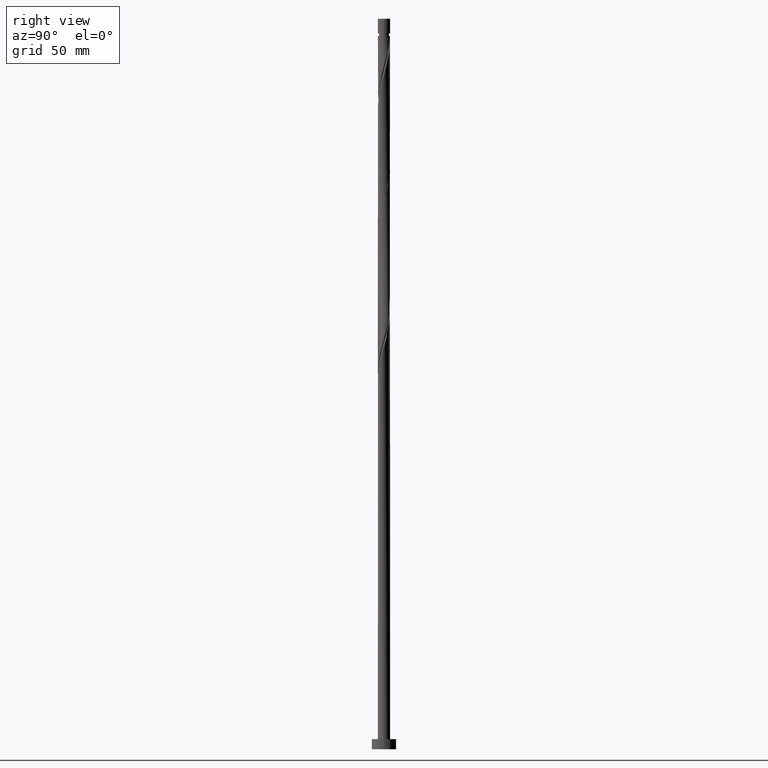
[diagram: clean part render]
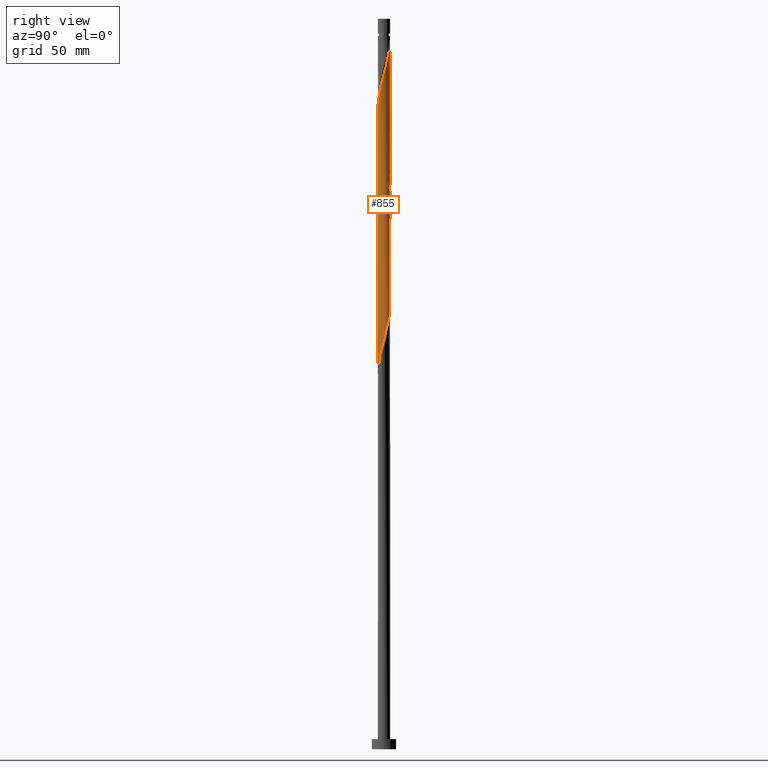
[diagram: same view with one face highlighted and labeled with its STEP entity id]
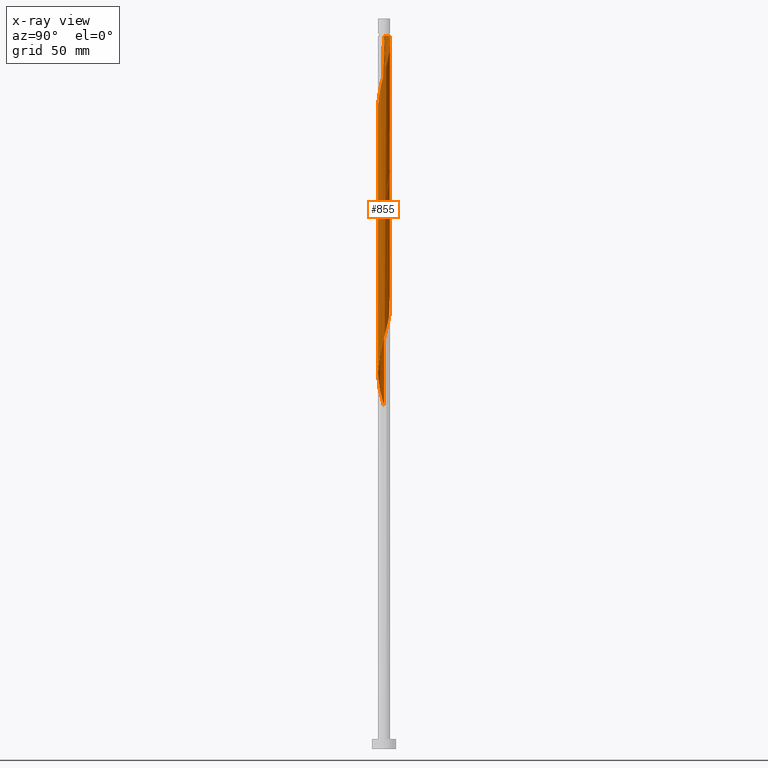
[diagram: x-ray of the same camera — body ghosted, the highlighted face saturated]
A machine part, right view. The second image highlights one B-rep face of the part: STEP entity #855.
The next image is the same camera in x-ray: the body ghosted, the highlighted face saturated — about 0% of this face is hidden behind the body in this view.
In plain terms, the highlighted cylindrical surface (bore or boss wall) has radius 3 mm, axis along (-0, -0, -1).
Its self-contained STEP definition (entity closure, byte-faithful):
#6 = CARTESIAN_POINT ( 'NONE',  ( -0.9059989139450633777, -2.877253563794372582, 181.4603085760876695 ) ) ;
#7 = CARTESIAN_POINT ( 'NONE',  ( 1.997955648279248431, 2.259998966801997522, 210.3491974649765268 ) ) ;
#10 = CARTESIAN_POINT ( 'NONE',  ( -0.3426132633519656800, -2.997004880578673980, 312.5714196871987269 ) ) ;
#15 = CARTESIAN_POINT ( 'NONE',  ( 2.980586974261063116, 0.3407363920471042640, 269.2380863538654125 ) ) ;
#19 = CARTESIAN_POINT ( 'NONE',  ( 3.000000000000000000, -0.1435319978602521140, 267.5216477384895484 ) ) ;
#20 = AXIS2_PLACEMENT_3D ( 'NONE', #726, #748, #566 ) ;
#26 = CARTESIAN_POINT ( 'NONE',  ( 2.944774136347767968, 0.6540087066196493826, 270.3491974649766121 ) ) ;
#27 = ORIENTED_EDGE ( 'NONE', *, *, #1527, .F. ) ;
#29 = CARTESIAN_POINT ( 'NONE',  ( -2.744447700168705762, -1.251970017003501523, 239.2380863538654694 ) ) ;
#30 = CARTESIAN_POINT ( 'NONE',  ( -0.3426132633519644033, 2.997004880578669095, 219.2380863538654694 ) ) ;
#37 = CARTESIAN_POINT ( 'NONE',  ( 2.986297077045554360, 0.2864083930844358306, 331.4603085760877548 ) ) ;
#50 = CIRCLE ( 'NONE', #1854, 2.999999999999970246 ) ;
#55 = CARTESIAN_POINT ( 'NONE',  ( 2.766788993523063400, 1.201790650553044681, 334.7936419094210123 ) ) ;
#64 = CARTESIAN_POINT ( 'NONE',  ( 2.038775222402709364, 2.223244857174723865, 339.2380863538654125 ) ) ;
#75 = CARTESIAN_POINT ( 'NONE',  ( -0.5969924622640607748, 2.940000000000876579, 349.2380863538654694 ) ) ;
#76 = CARTESIAN_POINT ( 'NONE',  ( 3.016399812174360928, 0.02746407747455687290, 201.4603085760876979 ) ) ;
#125 = CARTESIAN_POINT ( 'NONE',  ( -1.245111594254571630, 2.729413328510879921, 222.5714196871987269 ) ) ;
#137 = CARTESIAN_POINT ( 'NONE',  ( -2.456461689585820896, 1.750776419202127121, 228.1269752427542983 ) ) ;
#144 = CARTESIAN_POINT ( 'NONE',  ( -2.944774136347767080, -0.6540087066196500487, 237.0158641316432409 ) ) ;
#147 = VERTEX_POINT ( 'NONE', #389 ) ;
#155 = CARTESIAN_POINT ( 'NONE',  ( 3.000000000000000444, 3.673940397442060361E-16, 349.2380863538655262 ) ) ;
#164 = CARTESIAN_POINT ( 'NONE',  ( -3.000000000000000888, -0.1709212123392917781, 168.6357875734381082 ) ) ;
#174 = CARTESIAN_POINT ( 'NONE',  ( 0.2879860105828847550, 3.002746436205628200, 217.0158641316431840 ) ) ;
#176 = EDGE_CURVE ( 'NONE', #1225, #147, #1300, .T. ) ;
#190 = ORIENTED_EDGE ( 'NONE', *, *, #586, .F. ) ;
#194 = CARTESIAN_POINT ( 'NONE',  ( -0.9582386936374943653, -2.860279830445437987, 310.3491974649766121 ) ) ;
#197 = CARTESIAN_POINT ( 'NONE',  ( -0.02731362638454152419, -2.999875658392153532, 313.6825307983098696 ) ) ;
#202 = VERTEX_POINT ( 'NONE', #155 ) ;
#203 = CARTESIAN_POINT ( 'NONE',  ( 2.844610918258240417, -0.9529893618115796716, 327.0158641316432409 ) ) ;
#210 = CARTESIAN_POINT ( 'NONE',  ( 3.000000000000000888, 0.1709212123392948590, 268.6357875734382219 ) ) ;
#212 = CARTESIAN_POINT ( 'NONE',  ( -2.611625341554439483, 1.476283534877586678, 295.9047530205320982 ) ) ;
#214 = CARTESIAN_POINT ( 'NONE',  ( -3.016399812174361372, -0.02746407747455858334, 234.7936419094209839 ) ) ;
#219 = CARTESIAN_POINT ( 'NONE',  ( 0.5969924622639742884, 2.940000000000000391, 282.5714196871986701 ) ) ;
#230 = CARTESIAN_POINT ( 'NONE',  ( -2.038775222402705367, 2.223244857174722089, 225.9047530205320982 ) ) ;
#234 = CARTESIAN_POINT ( 'NONE',  ( -3.000000000000000444, 0.1435319978602517255, 300.8549810718228628 ) ) ;
#238 = CARTESIAN_POINT ( 'NONE',  ( -0.5969924622639740663, -2.940000000000000391, 249.2380863538654410 ) ) ;
#242 = CARTESIAN_POINT ( 'NONE',  ( -0.3426132633519644033, 2.997004880578669095, 285.9047530205321550 ) ) ;
#251 = CARTESIAN_POINT ( 'NONE',  ( -2.611625341554439483, 1.476283534877586678, 229.2380863538654410 ) ) ;
#257 = CARTESIAN_POINT ( 'NONE',  ( 0.6504259784947267198, -2.928642355512052209, 253.6825307983098412 ) ) ;
#269 = CARTESIAN_POINT ( 'NONE',  ( -0.9059989139450633777, -2.877253563794372582, 248.1269752427543551 ) ) ;
#278 = CARTESIAN_POINT ( 'NONE',  ( 2.247618455994262909, -1.987010638188424938, 193.6825307983098980 ) ) ;
#299 = CARTESIAN_POINT ( 'NONE',  ( -1.531984494871655667, -2.598546826576330293, 308.1269752427542699 ) ) ;
#300 = CARTESIAN_POINT ( 'NONE',  ( -0.6504259784947300504, -2.928642355512056206, 311.4603085760876411 ) ) ;
#308 = CYLINDRICAL_SURFACE ( 'NONE', #20, 3.000000000000000444 ) ;
#318 = CARTESIAN_POINT ( 'NONE',  ( -1.484415317302708814, -2.626010904050886108, 179.2380863538654694 ) ) ;
#327 = CARTESIAN_POINT ( 'NONE',  ( -2.986297077045553916, -0.2864083930844374959, 298.1269752427542130 ) ) ;
#334 = VERTEX_POINT ( 'NONE', #1284 ) ;
#335 = CARTESIAN_POINT ( 'NONE',  ( -1.195207115623886374, -2.751632233922628235, 180.3491974649765268 ) ) ;
#344 = CARTESIAN_POINT ( 'NONE',  ( 1.531984494871657887, 2.598546826576328517, 341.4603085760876979 ) ) ;
#350 = VERTEX_POINT ( 'NONE', #1852 ) ;
#361 = CARTESIAN_POINT ( 'NONE',  ( 2.980586974261063116, 0.3407363920471042640, 202.5714196871987838 ) ) ;
#370 = CARTESIAN_POINT ( 'NONE',  ( 0.9059989139450623785, -2.877253563794377911, 317.0158641316432977 ) ) ;
#377 = CARTESIAN_POINT ( 'NONE',  ( 2.944774136347767968, 0.6540087066196493826, 203.6825307983098980 ) ) ;
#379 = CARTESIAN_POINT ( 'NONE',  ( -0.2879860105828860872, -3.002746436205628644, 250.3491974649765268 ) ) ;
#388 = CARTESIAN_POINT ( 'NONE',  ( 1.531984494871652336, -2.598546826576327184, 257.0158641316432409 ) ) ;
#389 = CARTESIAN_POINT ( 'NONE',  ( -3.000000000000000888, 1.330408972439184785E-15, 301.3635295973869006 ) ) ;
#397 = CARTESIAN_POINT ( 'NONE',  ( 2.247618455994262909, -1.987010638188424938, 260.3491974649765552 ) ) ;
#403 = CARTESIAN_POINT ( 'NONE',  ( -2.766788993523058071, 1.201790650553046014, 297.0158641316432409 ) ) ;
#405 = CARTESIAN_POINT ( 'NONE',  ( 2.456461689585820451, -1.750776419202128897, 261.4603085760876411 ) ) ;
#412 = CARTESIAN_POINT ( 'NONE',  ( -1.785379858637178740, 2.410895841875523526, 291.4603085760876979 ) ) ;
#445 = CARTESIAN_POINT ( 'NONE',  ( -2.844610918258236865, -0.9529893618115754528, 171.4603085760876695 ) ) ;
#453 = CARTESIAN_POINT ( 'NONE',  ( 2.584311715169901547, 1.523592123514561303, 273.6825307983098696 ) ) ;
#462 = VERTEX_POINT ( 'NONE', #1125 ) ;
#463 = CARTESIAN_POINT ( 'NONE',  ( 0.3426132633519639037, -2.997004880578669095, 185.9047530205321266 ) ) ;
#473 = CARTESIAN_POINT ( 'NONE',  ( -0.5969924622639740663, -2.940000000000000391, 182.5714196871987838 ) ) ;
#474 = CARTESIAN_POINT ( 'NONE',  ( 2.944774136347771076, -0.6540087066196543786, 328.1269752427542699 ) ) ;
#508 = VECTOR ( 'NONE', #1430, 1000.000000000000000 ) ;
#525 = CARTESIAN_POINT ( 'NONE',  ( -3.000000000000000888, 1.330408972439184785E-15, 301.3635295973869006 ) ) ;
#557 = CARTESIAN_POINT ( 'NONE',  ( 2.038775222402704923, -2.223244857174722533, 192.5714196871987554 ) ) ;
#566 = DIRECTION ( 'NONE',  ( -1.000000000000000000, 0.000000000000000000, 0.000000000000000000 ) ) ;
#581 =( BOUNDED_CURVE ( )  B_SPLINE_CURVE ( 2, ( #1195, #1775, #327, #1161, #1439, #1159, #1020, #878, #731, #674, #1256, #299, #1801, #194, #300, #10, #197, #786, #1214, #370, #1363, #1234, #1528, #1242, #1511, #626, #1518, #1090, #203, #474, #646, #616, #37, #1676, #958, #55, #1080, #637, #1796, #64, #1538, #344, #1074, #1826, #917, #766, #1343, #1807, #75 ),
 .UNSPECIFIED., .F., .T. ) 
 B_SPLINE_CURVE_WITH_KNOTS ( ( 3, 2, 2, 2, 2, 2, 2, 2, 2, 2, 2, 2, 2, 2, 2, 2, 2, 2, 2, 2, 2, 2, 2, 2, 3 ),
 ( 0.5545286012773115170, 0.5583333333333333481, 0.5666666666666666519, 0.5749999999999999556, 0.5833333333333332593, 0.5916666666666666741, 0.5999999999999998668, 0.6083333333333332815, 0.6166666666666665853, 0.6249999999999998890, 0.6333333333333331927, 0.6416666666666664964, 0.6499999999999999112, 0.6583333333333332149, 0.6666666666666666297, 0.6749999999999999334, 0.6833333333333332371, 0.6916666666666665408, 0.6999999999999997335, 0.7083333333333330373, 0.7166666666666665630, 0.7249999999999998668, 0.7333333333333331705, 0.7416666666666664742, 0.7499999999999997780 ),
 .UNSPECIFIED. ) 
 CURVE ( )  GEOMETRIC_REPRESENTATION_ITEM ( )  RATIONAL_B_SPLINE_CURVE ( ( 0.9066196499552460208, 0.9068171577856587451, 0.9090909090909575774, 0.9041108139712058511, 0.9090909090909575774, 0.9041108139712058511, 0.9090909090909575774, 0.9041108139712058511, 0.9090909090909575774, 0.9041108139712058511, 0.9090909090909575774, 0.9041108139712058511, 0.9090909090909575774, 0.9041108139712058511, 0.9090909090909575774, 0.9041108139712058511, 0.9090909090909575774, 0.9041108139712058511, 0.9090909090909575774, 0.9041108139712058511, 0.9090909090909575774, 0.9041108139712058511, 0.9090909090909575774, 0.9041108139712058511, 0.9090909090909575774, 0.9041108139712058511, 0.9090909090909575774, 0.9041108139712058511, 0.9090909090909575774, 0.9041108139712058511, 0.9090909090909575774, 0.9041108139712058511, 0.9090909090909575774, 0.9041108139712058511, 0.9090909090909575774, 0.9041108139712058511, 0.9090909090909575774, 0.9041108139712058511, 0.9090909090909575774, 0.9041108139712058511, 0.9090909090909575774, 0.9041108139712058511, 0.9090909090909575774, 0.9041108139712058511, 0.9090909090909575774, 0.9041108139712058511, 0.9090909090909575774, 0.9041108139712059621, 0.9090909090909574664 ) ) 
 REPRESENTATION_ITEM ( '' )  );
#586 = EDGE_CURVE ( 'NONE', #350, #1777, #1468, .T. ) ;
#587 = DIRECTION ( 'NONE',  ( -0.000000000000000000, -0.000000000000000000, -1.000000000000000000 ) ) ;
#594 = CARTESIAN_POINT ( 'NONE',  ( 2.424175730171095111, 1.795214230025621971, 274.7936419094210123 ) ) ;
#615 = CARTESIAN_POINT ( 'NONE',  ( 0.02731362638453888741, -2.999875658392149091, 184.7936419094209555 ) ) ;
#616 = CARTESIAN_POINT ( 'NONE',  ( 3.016399812174365813, -0.02746407747456110909, 330.3491974649766689 ) ) ;
#624 = ORIENTED_EDGE ( 'NONE', *, *, #698, .T. ) ;
#625 = CARTESIAN_POINT ( 'NONE',  ( -2.211065689225170772, -2.027606598413810968, 175.9047530205320697 ) ) ;
#626 = CARTESIAN_POINT ( 'NONE',  ( 2.424175730171095999, -1.795214230025627966, 323.6825307983099265 ) ) ;
#637 = CARTESIAN_POINT ( 'NONE',  ( 2.456461689585826225, 1.750776419202127343, 337.0158641316431840 ) ) ;
#638 = CARTESIAN_POINT ( 'NONE',  ( 2.956194341916738466, -0.6002808636434360245, 199.2380863538654410 ) ) ;
#646 = CARTESIAN_POINT ( 'NONE',  ( 2.980586974261068445, -0.3407363920471063179, 329.2380863538654125 ) ) ;
#657 = CARTESIAN_POINT ( 'NONE',  ( -2.456461689585820896, 1.750776419202127121, 294.7936419094209555 ) ) ;
#661 = CARTESIAN_POINT ( 'NONE',  ( 2.611625341554439483, -1.476283534877586678, 262.5714196871988406 ) ) ;
#674 = CARTESIAN_POINT ( 'NONE',  ( -2.038775222402708920, -2.223244857174723865, 305.9047530205320982 ) ) ;
#683 = CARTESIAN_POINT ( 'NONE',  ( -0.02731362638453963335, 2.999875658392149536, 284.7936419094210123 ) ) ;
#686 = DIRECTION ( 'NONE',  ( -1.000000000000000000, 0.000000000000000000, 0.000000000000000000 ) ) ;
#691 = CARTESIAN_POINT ( 'NONE',  ( 0.2879860105828847550, 3.002746436205628200, 283.6825307983098128 ) ) ;
#698 = EDGE_CURVE ( 'NONE', #462, #1777, #1108, .T. ) ;
#708 = EDGE_CURVE ( 'NONE', #147, #350, #918, .T. ) ;
#726 = CARTESIAN_POINT ( 'NONE',  ( 0.000000000000000000, 0.000000000000000000, 357.7000000000000455 ) ) ;
#731 = CARTESIAN_POINT ( 'NONE',  ( -2.247618455994267350, -1.987010638188426048, 304.7936419094210692 ) ) ;
#736 = CARTESIAN_POINT ( 'NONE',  ( 1.531984494871652336, -2.598546826576327184, 190.3491974649765837 ) ) ;
#737 = CARTESIAN_POINT ( 'NONE',  ( -2.424175730171094223, -1.795214230025623747, 241.4603085760876979 ) ) ;
#738 = CARTESIAN_POINT ( 'NONE',  ( -3.000000000000000444, 0.000000000000000000, 357.7000000000000455 ) ) ;
#748 = DIRECTION ( 'NONE',  ( -0.000000000000000000, -0.000000000000000000, -1.000000000000000000 ) ) ;
#757 = CARTESIAN_POINT ( 'NONE',  ( -3.000000000000000888, 3.602568116380264432E-15, 168.0301962640535862 ) ) ;
#766 = CARTESIAN_POINT ( 'NONE',  ( 0.3426132633519660686, 2.997004880578673980, 345.9047530205320413 ) ) ;
#767 = CARTESIAN_POINT ( 'NONE',  ( 0.5969924622639742884, 2.940000000000000391, 215.9047530205320697 ) ) ;
#770 = CARTESIAN_POINT ( 'NONE',  ( 2.956194341916738466, -0.6002808636434360245, 265.9047530205320982 ) ) ;
#776 = CARTESIAN_POINT ( 'NONE',  ( -2.584311715169900214, -1.523592123514561747, 173.6825307983098980 ) ) ;
#786 = CARTESIAN_POINT ( 'NONE',  ( 0.2879860105828839223, -3.002746436205632641, 314.7936419094209555 ) ) ;
#788 = CARTESIAN_POINT ( 'NONE',  ( 2.584311715169901547, 1.523592123514561303, 207.0158641316431840 ) ) ;
#806 = CARTESIAN_POINT ( 'NONE',  ( 2.844610918258238197, 0.9529893618115738985, 204.7936419094210123 ) ) ;
#831 = DIRECTION ( 'NONE',  ( -0.000000000000000000, -0.000000000000000000, -1.000000000000000000 ) ) ;
#834 = CARTESIAN_POINT ( 'NONE',  ( 2.038775222402704923, -2.223244857174722533, 259.2380863538655262 ) ) ;
#842 = CARTESIAN_POINT ( 'NONE',  ( 0.02731362638453888741, -2.999875658392149091, 251.4603085760875842 ) ) ;
#850 = CARTESIAN_POINT ( 'NONE',  ( -3.000000000000000444, 0.000000000000000000, 357.7000000000000455 ) ) ;
#855 = ADVANCED_FACE ( 'NONE', ( #980 ), #308, .T. ) ;
#856 = CARTESIAN_POINT ( 'NONE',  ( -1.195207115623886374, -2.751632233922628235, 247.0158641316431840 ) ) ;
#870 = CARTESIAN_POINT ( 'NONE',  ( -1.785379858637178740, 2.410895841875523526, 224.7936419094210123 ) ) ;
#878 = CARTESIAN_POINT ( 'NONE',  ( -2.456461689585825336, -1.750776419202128675, 303.6825307983098128 ) ) ;
#879 = CARTESIAN_POINT ( 'NONE',  ( 2.766788993523057183, -1.201790650553047346, 263.6825307983099265 ) ) ;
#900 = CARTESIAN_POINT ( 'NONE',  ( 2.744447700168705762, 1.251970017003501079, 272.5714196871988406 ) ) ;
#902 = CARTESIAN_POINT ( 'NONE',  ( -0.6504259784947276080, 2.928642355512051765, 220.3491974649765268 ) ) ;
#917 = CARTESIAN_POINT ( 'NONE',  ( 0.6504259784947317158, 2.928642355512055762, 344.7936419094210123 ) ) ;
#918 =( BOUNDED_CURVE ( )  B_SPLINE_CURVE ( 2, ( #525, #234, #1260, #1861, #1133, #403, #212, #657, #1116, #1695, #412, #1370, #1105, #1266, #954, #242, #683, #691, #219, #1813, #1661, #963, #1381, #1405, #1016, #594, #453, #900, #1750, #26, #15, #210, #1816 ),
 .UNSPECIFIED., .F., .T. ) 
 B_SPLINE_CURVE_WITH_KNOTS ( ( 3, 2, 2, 2, 2, 2, 2, 2, 2, 2, 2, 2, 2, 2, 2, 2, 3 ),
 ( 0.4295286012773115170, 0.4333333333333333481, 0.4416666666666666519, 0.4500000000000000111, 0.4583333333333333148, 0.4666666666666666741, 0.4749999999999999778, 0.4833333333333333370, 0.4916666666666666408, 0.5000000000000000000, 0.5083333333333333037, 0.5166666666666667185, 0.5250000000000000222, 0.5333333333333333259, 0.5416666666666666297, 0.5500000000000000444, 0.5545286012773115170 ),
 .UNSPECIFIED. ) 
 CURVE ( )  GEOMETRIC_REPRESENTATION_ITEM ( )  RATIONAL_B_SPLINE_CURVE ( ( 0.9066196499552395816, 0.9068171577856523058, 0.9090909090909511381, 0.9041108139711994118, 0.9090909090909511381, 0.9041108139711994118, 0.9090909090909511381, 0.9041108139711994118, 0.9090909090909511381, 0.9041108139711994118, 0.9090909090909511381, 0.9041108139711994118, 0.9090909090909511381, 0.9041108139711994118, 0.9090909090909511381, 0.9041108139711994118, 0.9090909090909511381, 0.9041108139711994118, 0.9090909090909511381, 0.9041108139711994118, 0.9090909090909511381, 0.9041108139711994118, 0.9090909090909511381, 0.9041108139711994118, 0.9090909090909511381, 0.9041108139711994118, 0.9090909090909511381, 0.9041108139711994118, 0.9090909090909511381, 0.9041108139711994118, 0.9090909090909511381, 0.9063845652764983551, 0.9066196499552395816 ) ) 
 REPRESENTATION_ITEM ( '' )  );
#927 = DIRECTION ( 'NONE',  ( -0.000000000000000000, -0.000000000000000000, -1.000000000000000000 ) ) ;
#954 = CARTESIAN_POINT ( 'NONE',  ( -0.6504259784947276080, 2.928642355512051765, 287.0158641316432409 ) ) ;
#958 = CARTESIAN_POINT ( 'NONE',  ( 2.861491667719903820, 0.9010357570982401310, 333.6825307983098128 ) ) ;
#963 = CARTESIAN_POINT ( 'NONE',  ( 1.484415317302709258, 2.626010904050886108, 279.2380863538654694 ) ) ;
#967 = CARTESIAN_POINT ( 'NONE',  ( 2.766788993523057183, -1.201790650553047346, 197.0158641316432693 ) ) ;
#976 = CARTESIAN_POINT ( 'NONE',  ( -2.844610918258236865, -0.9529893618115754528, 238.1269752427543267 ) ) ;
#980 = FACE_OUTER_BOUND ( 'NONE', #1536, .T. ) ;
#990 = CARTESIAN_POINT ( 'NONE',  ( 1.785379858637178074, -2.410895841875524415, 258.1269752427542699 ) ) ;
#1016 = CARTESIAN_POINT ( 'NONE',  ( 2.211065689225170772, 2.027606598413810968, 275.9047530205320982 ) ) ;
#1020 = CARTESIAN_POINT ( 'NONE',  ( -2.611625341554444368, -1.476283534877587789, 302.5714196871987269 ) ) ;
#1022 = CARTESIAN_POINT ( 'NONE',  ( 2.861491667719898047, -0.9010357570982429065, 264.7936419094209555 ) ) ;
#1028 = CARTESIAN_POINT ( 'NONE',  ( -2.744447700168705762, -1.251970017003501523, 172.5714196871987554 ) ) ;
#1039 = CARTESIAN_POINT ( 'NONE',  ( -2.980586974261063116, -0.3407363920471046526, 169.2380863538654125 ) ) ;
#1048 = CARTESIAN_POINT ( 'NONE',  ( 0.6504259784947267198, -2.928642355512052209, 187.0158641316432693 ) ) ;
#1074 = CARTESIAN_POINT ( 'NONE',  ( 1.245111594254575182, 2.729413328510883918, 342.5714196871987838 ) ) ;
#1080 = CARTESIAN_POINT ( 'NONE',  ( 2.611625341554444368, 1.476283534877587345, 335.9047530205322118 ) ) ;
#1081 = CARTESIAN_POINT ( 'NONE',  ( 2.744447700168705762, 1.251970017003501079, 205.9047530205320982 ) ) ;
#1090 = CARTESIAN_POINT ( 'NONE',  ( 2.744447700168709314, -1.251970017003504632, 325.9047530205320413 ) ) ;
#1101 = LINE ( 'NONE', #1205, #1581 ) ;
#1105 = CARTESIAN_POINT ( 'NONE',  ( -1.245111594254571630, 2.729413328510879921, 289.2380863538654694 ) ) ;
#1108 = LINE ( 'NONE', #850, #508 ) ;
#1111 = ORIENTED_EDGE ( 'NONE', *, *, #1540, .F. ) ;
#1116 = CARTESIAN_POINT ( 'NONE',  ( -2.247618455994262909, 1.987010638188424494, 293.6825307983098128 ) ) ;
#1121 = CARTESIAN_POINT ( 'NONE',  ( -2.956194341916738466, 0.6002808636434358025, 232.5714196871987554 ) ) ;
#1125 = CARTESIAN_POINT ( 'NONE',  ( -3.000000000000005329, 5.979366168265956448E-17, 297.1126431103439245 ) ) ;
#1133 = CARTESIAN_POINT ( 'NONE',  ( -2.861491667719898047, 0.9010357570982411302, 298.1269752427544404 ) ) ;
#1136 = CARTESIAN_POINT ( 'NONE',  ( 0.3426132633519639037, -2.997004880578669095, 252.5714196871988122 ) ) ;
#1145 = CARTESIAN_POINT ( 'NONE',  ( -1.997955648279247542, -2.259998966801997966, 243.6825307983098980 ) ) ;
#1159 = CARTESIAN_POINT ( 'NONE',  ( -2.766788993523062512, -1.201790650553046236, 301.4603085760875842 ) ) ;
#1161 = CARTESIAN_POINT ( 'NONE',  ( -2.956194341916742463, -0.6002808636434358025, 299.2380863538655262 ) ) ;
#1173 = ORIENTED_EDGE ( 'NONE', *, *, #1336, .T. ) ;
#1195 = CARTESIAN_POINT ( 'NONE',  ( -3.000000000000005329, 5.979366168265956448E-17, 297.1126431103439245 ) ) ;
#1196 = CARTESIAN_POINT ( 'NONE',  ( 3.000000000000000888, 3.542774454697604929E-15, 268.0301962640536431 ) ) ;
#1205 = CARTESIAN_POINT ( 'NONE',  ( 3.000000000000000444, 3.673940397442060361E-16, 357.7000000000000455 ) ) ;
#1214 = CARTESIAN_POINT ( 'NONE',  ( 0.5969924622639737333, -2.940000000000005720, 315.9047530205319845 ) ) ;
#1217 = CARTESIAN_POINT ( 'NONE',  ( -2.980586974261063116, -0.3407363920471046526, 235.9047530205320697 ) ) ;
#1225 = VERTEX_POINT ( 'NONE', #1684 ) ;
#1234 = CARTESIAN_POINT ( 'NONE',  ( 1.484415317302710147, -2.626010904050890105, 319.2380863538653557 ) ) ;
#1235 = CARTESIAN_POINT ( 'NONE',  ( 2.211065689225170772, 2.027606598413810968, 209.2380863538654125 ) ) ;
#1242 = CARTESIAN_POINT ( 'NONE',  ( 1.997955648279248875, -2.259998966802002851, 321.4603085760875842 ) ) ;
#1243 = CARTESIAN_POINT ( 'NONE',  ( 2.861491667719898047, -0.9010357570982429065, 198.1269752427543551 ) ) ;
#1247 = CARTESIAN_POINT ( 'NONE',  ( -2.247618455994262909, 1.987010638188424494, 227.0158641316432124 ) ) ;
#1253 = ORIENTED_EDGE ( 'NONE', *, *, #1540, .T. ) ;
#1256 = CARTESIAN_POINT ( 'NONE',  ( -1.785379858637183181, -2.410895841875526635, 307.0158641316431840 ) ) ;
#1260 = CARTESIAN_POINT ( 'NONE',  ( -2.986297077045549475, 0.2864083930844386616, 300.3491974649765552 ) ) ;
#1265 = CARTESIAN_POINT ( 'NONE',  ( -2.861491667719898047, 0.9010357570982411302, 231.4603085760876979 ) ) ;
#1266 = CARTESIAN_POINT ( 'NONE',  ( -0.9582386936374912567, 2.860279830445434435, 288.1269752427543835 ) ) ;
#1284 = CARTESIAN_POINT ( 'NONE',  ( -0.5969924622640608858, 2.940000000000876135, 349.2380863538655262 ) ) ;
#1289 = CARTESIAN_POINT ( 'NONE',  ( -1.741185482790978289, -2.443004935426440483, 244.7936419094209555 ) ) ;
#1300 = LINE ( 'NONE', #738, #1308 ) ;
#1308 = VECTOR ( 'NONE', #587, 1000.000000000000000 ) ;
#1336 = EDGE_CURVE ( 'NONE', #1225, #334, #50, .T. ) ;
#1342 = CARTESIAN_POINT ( 'NONE',  ( 0.9582386936374905906, -2.860279830445434879, 188.1269752427543267 ) ) ;
#1343 = CARTESIAN_POINT ( 'NONE',  ( 0.02731362638454194400, 2.999875658392153976, 347.0158641316432409 ) ) ;
#1344 = CARTESIAN_POINT ( 'NONE',  ( 0.9059989139450650431, 2.877253563794372138, 214.7936419094209839 ) ) ;
#1346 = ORIENTED_EDGE ( 'NONE', *, *, #708, .F. ) ;
#1355 = CARTESIAN_POINT ( 'NONE',  ( 1.195207115623886818, 2.751632233922627790, 213.6825307983098696 ) ) ;
#1363 = CARTESIAN_POINT ( 'NONE',  ( 1.195207115623885930, -2.751632233922634008, 318.1269752427543835 ) ) ;
#1370 = CARTESIAN_POINT ( 'NONE',  ( -1.531984494871652558, 2.598546826576327184, 290.3491974649765552 ) ) ;
#1381 = CARTESIAN_POINT ( 'NONE',  ( 1.741185482790979400, 2.443004935426440483, 278.1269752427543267 ) ) ;
#1391 = CARTESIAN_POINT ( 'NONE',  ( 0.000000000000000000, 0.000000000000000000, 349.2380863538654125 ) ) ;
#1392 = ORIENTED_EDGE ( 'NONE', *, *, #176, .F. ) ;
#1405 = CARTESIAN_POINT ( 'NONE',  ( 1.997955648279248431, 2.259998966801997522, 277.0158641316431840 ) ) ;
#1430 = DIRECTION ( 'NONE',  ( -0.000000000000000000, -0.000000000000000000, -1.000000000000000000 ) ) ;
#1434 = CARTESIAN_POINT ( 'NONE',  ( -1.484415317302708814, -2.626010904050886108, 245.9047530205320982 ) ) ;
#1439 = CARTESIAN_POINT ( 'NONE',  ( -2.861491667719903820, -0.9010357570982413522, 300.3491974649765552 ) ) ;
#1445 = CARTESIAN_POINT ( 'NONE',  ( -1.531984494871652558, 2.598546826576327184, 223.6825307983098412 ) ) ;
#1465 = CARTESIAN_POINT ( 'NONE',  ( 1.484415317302709258, 2.626010904050886108, 212.5714196871987554 ) ) ;
#1468 =( BOUNDED_CURVE ( )  B_SPLINE_CURVE ( 2, ( #1196, #19, #1776, #770, #1022, #879, #661, #405, #397, #834, #990, #388, #1549, #1586, #257, #1136, #842, #379, #238, #269, #856, #1434, #1289, #1145, #1486, #737, #1754, #29, #976, #144, #1217, #214, #1692, #1121, #1265, #1703, #251, #137, #1247, #230, #870, #1445, #125, #1616, #902, #30, #1494, #174, #767, #1344, #1355, #1465, #1797, #7, #1235, #1697, #788, #1081, #806, #377, #361, #76, #1677, #638, #1243, #967, #1828, #1845, #278, #557, #1602, #736, #1772, #1342, #1048, #463, #615, #1783, #473, #6, #335, #318, #1474, #1501, #625, #1763, #776, #1028, #445, #1484, #1039, #164, #757 ),
 .UNSPECIFIED., .F., .T. ) 
 B_SPLINE_CURVE_WITH_KNOTS ( ( 3, 2, 2, 2, 2, 2, 2, 2, 2, 2, 2, 2, 2, 2, 2, 2, 2, 2, 2, 2, 2, 2, 2, 2, 2, 2, 2, 2, 2, 2, 2, 2, 2, 2, 2, 2, 2, 2, 2, 2, 2, 2, 2, 2, 2, 2, 3 ),
 ( 0.5545286012773115170, 0.5583333333333333481, 0.5666666666666666519, 0.5749999999999999556, 0.5833333333333333703, 0.5916666666666666741, 0.5999999999999999778, 0.6083333333333332815, 0.6166666666666666963, 0.6250000000000000000, 0.6333333333333333037, 0.6416666666666667185, 0.6500000000000000222, 0.6583333333333333259, 0.6666666666666666297, 0.6750000000000000444, 0.6833333333333333481, 0.6916666666666666519, 0.6999999999999999556, 0.7083333333333333703, 0.7166666666666666741, 0.7249999999999999778, 0.7333333333333332815, 0.7416666666666666963, 0.7500000000000000000, 0.7583333333333333037, 0.7666666666666667185, 0.7750000000000000222, 0.7833333333333333259, 0.7916666666666666297, 0.8000000000000000444, 0.8083333333333333481, 0.8166666666666666519, 0.8249999999999999556, 0.8333333333333333703, 0.8416666666666666741, 0.8499999999999999778, 0.8583333333333332815, 0.8666666666666666963, 0.8750000000000000000, 0.8833333333333333037, 0.8916666666666667185, 0.8999999999999999112, 0.9083333333333332149, 0.9166666666666665186, 0.9250000000000000444, 0.9295286012773116280 ),
 .UNSPECIFIED. ) 
 CURVE ( )  GEOMETRIC_REPRESENTATION_ITEM ( )  RATIONAL_B_SPLINE_CURVE ( ( 0.9066196499552395816, 0.9068171577856523058, 0.9090909090909511381, 0.9041108139711994118, 0.9090909090909511381, 0.9041108139711994118, 0.9090909090909511381, 0.9041108139711994118, 0.9090909090909511381, 0.9041108139711994118, 0.9090909090909511381, 0.9041108139711994118, 0.9090909090909511381, 0.9041108139711994118, 0.9090909090909511381, 0.9041108139711994118, 0.9090909090909511381, 0.9041108139711994118, 0.9090909090909511381, 0.9041108139711994118, 0.9090909090909511381, 0.9041108139711994118, 0.9090909090909511381, 0.9041108139711994118, 0.9090909090909511381, 0.9041108139711994118, 0.9090909090909511381, 0.9041108139711994118, 0.9090909090909511381, 0.9041108139711994118, 0.9090909090909511381, 0.9041108139711994118, 0.9090909090909511381, 0.9041108139711994118, 0.9090909090909511381, 0.9041108139711994118, 0.9090909090909511381, 0.9041108139711994118, 0.9090909090909511381, 0.9041108139711994118, 0.9090909090909511381, 0.9041108139711994118, 0.9090909090909511381, 0.9041108139711994118, 0.9090909090909511381, 0.9041108139711994118, 0.9090909090909511381, 0.9041108139711994118, 0.9090909090909511381, 0.9041108139711994118, 0.9090909090909511381, 0.9041108139711994118, 0.9090909090909511381, 0.9041108139711994118, 0.9090909090909511381, 0.9041108139711994118, 0.9090909090909511381, 0.9041108139711994118, 0.9090909090909511381, 0.9041108139711994118, 0.9090909090909511381, 0.9041108139711994118, 0.9090909090909511381, 0.9041108139711994118, 0.9090909090909511381, 0.9041108139711994118, 0.9090909090909511381, 0.9041108139711994118, 0.9090909090909511381, 0.9041108139711994118, 0.9090909090909511381, 0.9041108139711994118, 0.9090909090909511381, 0.9041108139711994118, 0.9090909090909511381, 0.9041108139711994118, 0.9090909090909511381, 0.9041108139711994118, 0.9090909090909511381, 0.9041108139711994118, 0.9090909090909511381, 0.9041108139711994118, 0.9090909090909511381, 0.9041108139711994118, 0.9090909090909511381, 0.9041108139711994118, 0.9090909090909511381, 0.9041108139711994118, 0.9090909090909511381, 0.9041108139711994118, 0.9090909090909511381, 0.9063845652764982441, 0.9066196499552394705 ) ) 
 REPRESENTATION_ITEM ( '' )  );
#1474 = CARTESIAN_POINT ( 'NONE',  ( -1.741185482790978289, -2.443004935426440483, 178.1269752427542983 ) ) ;
#1484 = CARTESIAN_POINT ( 'NONE',  ( -2.944774136347767080, -0.6540087066196500487, 170.3491974649765837 ) ) ;
#1486 = CARTESIAN_POINT ( 'NONE',  ( -2.211065689225170772, -2.027606598413810968, 242.5714196871987554 ) ) ;
#1494 = CARTESIAN_POINT ( 'NONE',  ( -0.02731362638453963335, 2.999875658392149536, 218.1269752427543835 ) ) ;
#1501 = CARTESIAN_POINT ( 'NONE',  ( -1.997955648279247542, -2.259998966801997966, 177.0158641316431840 ) ) ;
#1511 = CARTESIAN_POINT ( 'NONE',  ( 2.211065689225173436, -2.027606598413814520, 322.5714196871987269 ) ) ;
#1518 = CARTESIAN_POINT ( 'NONE',  ( 2.584311715169902879, -1.523592123514566632, 324.7936419094209555 ) ) ;
#1527 = EDGE_CURVE ( 'NONE', #462, #334, #581, .T. ) ;
#1528 = CARTESIAN_POINT ( 'NONE',  ( 1.741185482790979178, -2.443004935426447144, 320.3491974649765552 ) ) ;
#1536 = EDGE_LOOP ( 'NONE', ( #1392, #1173, #27, #624, #190, #1111, #1253, #1346 ) ) ;
#1538 = CARTESIAN_POINT ( 'NONE',  ( 1.785379858637183625, 2.410895841875526191, 340.3491974649764984 ) ) ;
#1540 = EDGE_CURVE ( 'NONE', #202, #350, #1101, .T. ) ;
#1549 = CARTESIAN_POINT ( 'NONE',  ( 1.245111594254571630, -2.729413328510879921, 255.9047530205321266 ) ) ;
#1581 = VECTOR ( 'NONE', #927, 1000.000000000000000 ) ;
#1586 = CARTESIAN_POINT ( 'NONE',  ( 0.9582386936374905906, -2.860279830445434879, 254.7936419094210123 ) ) ;
#1602 = CARTESIAN_POINT ( 'NONE',  ( 1.785379858637178074, -2.410895841875524415, 191.4603085760876695 ) ) ;
#1616 = CARTESIAN_POINT ( 'NONE',  ( -0.9582386936374912567, 2.860279830445434435, 221.4603085760876411 ) ) ;
#1661 = CARTESIAN_POINT ( 'NONE',  ( 1.195207115623886818, 2.751632233922627790, 280.3491974649764416 ) ) ;
#1676 = CARTESIAN_POINT ( 'NONE',  ( 2.956194341916742463, 0.6002808636434353584, 332.5714196871986132 ) ) ;
#1677 = CARTESIAN_POINT ( 'NONE',  ( 2.986297077045549031, -0.2864083930844397163, 200.3491974649764984 ) ) ;
#1684 = CARTESIAN_POINT ( 'NONE',  ( -2.999999999999970246, 0.000000000000000000, 349.2380863538654125 ) ) ;
#1692 = CARTESIAN_POINT ( 'NONE',  ( -2.986297077045549475, 0.2864083930844386616, 233.6825307983098696 ) ) ;
#1695 = CARTESIAN_POINT ( 'NONE',  ( -2.038775222402705367, 2.223244857174722089, 292.5714196871988406 ) ) ;
#1697 = CARTESIAN_POINT ( 'NONE',  ( 2.424175730171095111, 1.795214230025621971, 208.1269752427543267 ) ) ;
#1703 = CARTESIAN_POINT ( 'NONE',  ( -2.766788993523058071, 1.201790650553046014, 230.3491974649765268 ) ) ;
#1750 = CARTESIAN_POINT ( 'NONE',  ( 2.844610918258238197, 0.9529893618115738985, 271.4603085760876411 ) ) ;
#1754 = CARTESIAN_POINT ( 'NONE',  ( -2.584311715169900214, -1.523592123514561747, 240.3491974649765837 ) ) ;
#1763 = CARTESIAN_POINT ( 'NONE',  ( -2.424175730171094223, -1.795214230025623747, 174.7936419094210123 ) ) ;
#1772 = CARTESIAN_POINT ( 'NONE',  ( 1.245111594254571630, -2.729413328510879921, 189.2380863538654125 ) ) ;
#1775 = CARTESIAN_POINT ( 'NONE',  ( -3.000000000000005329, -0.1435319978602493662, 297.6211916359079623 ) ) ;
#1776 = CARTESIAN_POINT ( 'NONE',  ( 2.986297077045549031, -0.2864083930844397163, 267.0158641316432409 ) ) ;
#1777 = VERTEX_POINT ( 'NONE', #1832 ) ;
#1783 = CARTESIAN_POINT ( 'NONE',  ( -0.2879860105828860872, -3.002746436205628644, 183.6825307983098696 ) ) ;
#1796 = CARTESIAN_POINT ( 'NONE',  ( 2.247618455994268238, 1.987010638188425382, 338.1269752427543835 ) ) ;
#1797 = CARTESIAN_POINT ( 'NONE',  ( 1.741185482790979400, 2.443004935426440483, 211.4603085760876979 ) ) ;
#1801 = CARTESIAN_POINT ( 'NONE',  ( -1.245111594254574738, -2.729413328510883918, 309.2380863538654125 ) ) ;
#1807 = CARTESIAN_POINT ( 'NONE',  ( -0.2879860105828737638, 3.002746436205633973, 348.1269752427543835 ) ) ;
#1813 = CARTESIAN_POINT ( 'NONE',  ( 0.9059989139450650431, 2.877253563794372138, 281.4603085760876979 ) ) ;
#1816 = CARTESIAN_POINT ( 'NONE',  ( 3.000000000000000888, 3.542774454697604929E-15, 268.0301962640536431 ) ) ;
#1826 = CARTESIAN_POINT ( 'NONE',  ( 0.9582386936374949205, 2.860279830445437543, 343.6825307983099265 ) ) ;
#1828 = CARTESIAN_POINT ( 'NONE',  ( 2.611625341554439483, -1.476283534877586678, 195.9047530205321266 ) ) ;
#1832 = CARTESIAN_POINT ( 'NONE',  ( -3.000000000000000888, 3.602568116380264432E-15, 168.0301962640535862 ) ) ;
#1845 = CARTESIAN_POINT ( 'NONE',  ( 2.456461689585820451, -1.750776419202128897, 194.7936419094210123 ) ) ;
#1852 = CARTESIAN_POINT ( 'NONE',  ( 3.000000000000000444, 3.542774454697604929E-15, 268.0301962640536431 ) ) ;
#1854 = AXIS2_PLACEMENT_3D ( 'NONE', #1391, #831, #686 ) ;
#1861 = CARTESIAN_POINT ( 'NONE',  ( -2.956194341916738466, 0.6002808636434358025, 299.2380863538654694 ) ) ;